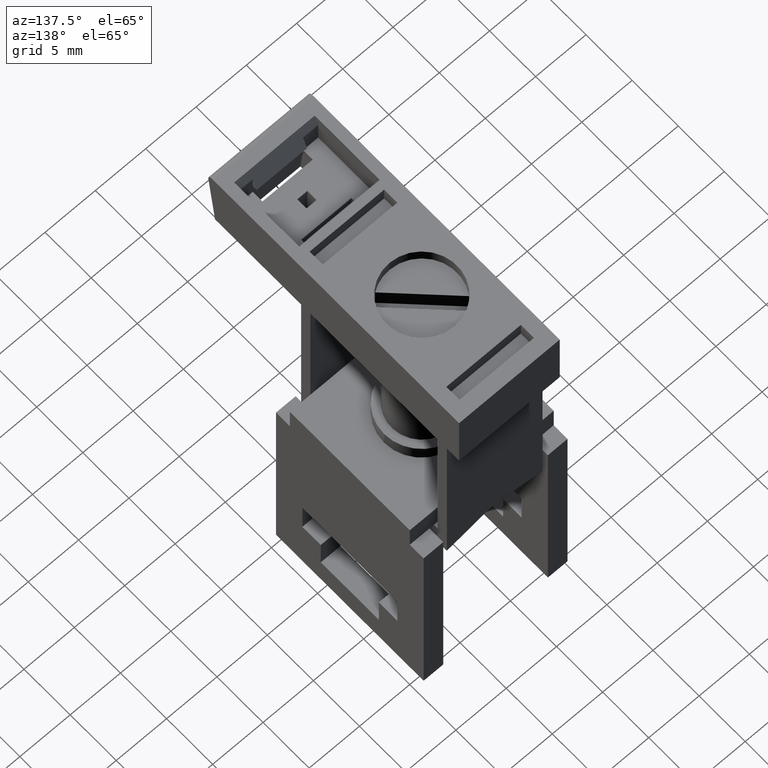
[diagram: clean part render]
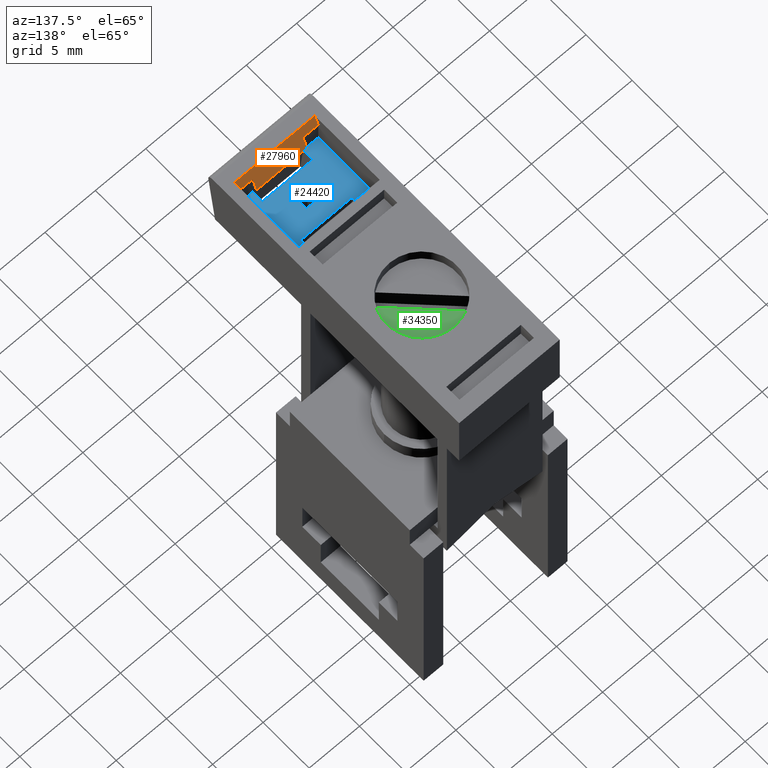
[diagram: same view with three faces highlighted in distinct colors, each labeled with its STEP entity id]
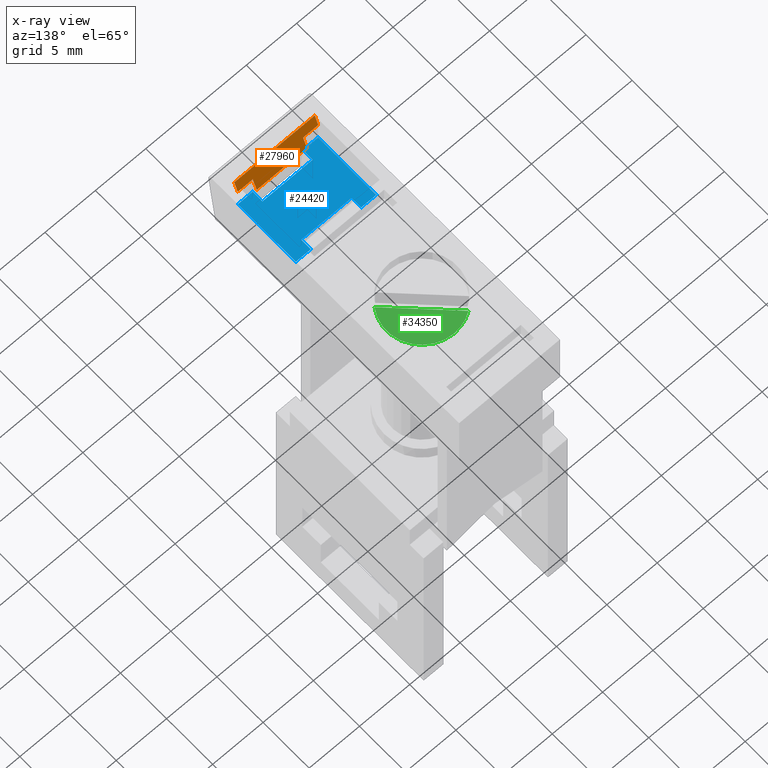
[diagram: x-ray of the same camera — body ghosted, the three highlighted faces saturated]
A machine part, auxiliary view with three faces highlighted in distinct colors.
The next image is the same camera in x-ray (body ghosted, the three faces saturated) — at least one of them is partly hidden behind the body in this view.
Their STEP definitions:

[orange] entity #27960 — the highlighted planar face has unit normal (-0, -0.9397, -0.342).
#22340=CARTESIAN_POINT('',(-24.2056108469937,17.6676779032682,15.6));
#22350=VERTEX_POINT('',#22340);
#22400=CARTESIAN_POINT('',(-24.2056108469937,-24.6874456012687,
0.183995775679829));
#22410=DIRECTION('',(-3.73538322395659E-32,-0.939692620785909,
-0.342020143325667));
#22420=VECTOR('',#22410,1.);
#22430=LINE('',#22400,#22420);
#22440=CARTESIAN_POINT('',(-24.2056108469937,16.5,15.175));
#22450=VERTEX_POINT('',#22440);
#22460=EDGE_CURVE('',#22350,#22450,#22430,.T.);
#26520=CARTESIAN_POINT('',(-30.7056108469937,17.6676779032682,15.6));
#26530=VERTEX_POINT('',#26520);
#26630=CARTESIAN_POINT('',(-22.7056108469937,17.6676779032682,15.6));
#26640=VERTEX_POINT('',#26630);
#26670=CARTESIAN_POINT('',(-26.7056108469937,17.6676779032682,15.6));
#26680=DIRECTION('',(-1.,4.93038065763132E-32,2.62457961965826E-32));
#26690=VECTOR('',#26680,1.);
#26700=LINE('',#26670,#26690);
#26710=EDGE_CURVE('',#26640,#22350,#26700,.T.);
#26860=CARTESIAN_POINT('',(-29.2056108469937,17.6676779032682,15.6));
#26870=VERTEX_POINT('',#26860);
#26900=CARTESIAN_POINT('',(-26.7056108469937,17.6676779032682,15.6));
#26910=DIRECTION('',(-1.,4.93038065763132E-32,2.62457961965826E-32));
#26920=VECTOR('',#26910,1.);
#26930=LINE('',#26900,#26920);
#26940=EDGE_CURVE('',#26870,#26530,#26930,.T.);
#27060=CARTESIAN_POINT('',(-29.2056108469937,-24.6874456012687,
0.183995775679829));
#27070=DIRECTION('',(3.73538322395659E-32,0.939692620785909,
0.342020143325667));
#27080=VECTOR('',#27070,1.);
#27090=LINE('',#27060,#27080);
#27100=CARTESIAN_POINT('',(-29.2056108469937,16.5,15.175));
#27110=VERTEX_POINT('',#27100);
#27120=EDGE_CURVE('',#27110,#26870,#27090,.T.);
#27370=CARTESIAN_POINT('',(-30.7056108469937,-24.6874456012687,
0.183995775679829));
#27380=DIRECTION('',(3.73538322395659E-32,0.939692620785909,
0.342020143325667));
#27390=VECTOR('',#27380,1.);
#27400=LINE('',#27370,#27390);
#27410=CARTESIAN_POINT('',(-30.7056108469937,18.7,15.9757345153856));
#27420=VERTEX_POINT('',#27410);
#27430=EDGE_CURVE('',#26530,#27420,#27400,.T.);
#27640=CARTESIAN_POINT('',(-26.7056108469937,18.0420201433257,
15.7362494328094));
#27650=DIRECTION('',(7.80008602084795E-33,-0.342020143325667,
0.939692620785909));
#27660=DIRECTION('',(-3.73538322395659E-32,-0.939692620785909,
-0.342020143325667));
#27670=AXIS2_PLACEMENT_3D('',#27640,#27650,#27660);
#27680=PLANE('',#27670);
#27690=CARTESIAN_POINT('',(-26.7056108469937,18.7,15.9757345153856));
#27700=DIRECTION('',(-1.,4.93038065763132E-32,2.62457961965826E-32));
#27710=VECTOR('',#27700,1.);
#27720=LINE('',#27690,#27710);
#27730=CARTESIAN_POINT('',(-22.7056108469937,18.7,15.9757345153856));
#27740=VERTEX_POINT('',#27730);
#27750=EDGE_CURVE('',#27740,#27420,#27720,.T.);
#27760=ORIENTED_EDGE('',*,*,#27750,.F.);
#27770=ORIENTED_EDGE('',*,*,#27430,.T.);
#27780=ORIENTED_EDGE('',*,*,#26940,.T.);
#27790=ORIENTED_EDGE('',*,*,#27120,.T.);
#27800=CARTESIAN_POINT('',(-26.7056108469937,16.5,15.175));
#27810=DIRECTION('',(1.,-4.93038065763132E-32,-2.62457961965826E-32));
#27820=VECTOR('',#27810,1.);
#27830=LINE('',#27800,#27820);
#27840=EDGE_CURVE('',#27110,#22450,#27830,.T.);
#27850=ORIENTED_EDGE('',*,*,#27840,.F.);
#27860=ORIENTED_EDGE('',*,*,#22460,.T.);
#27870=ORIENTED_EDGE('',*,*,#26710,.T.);
#27880=CARTESIAN_POINT('',(-22.7056108469937,-24.6874456012687,
0.183995775679829));
#27890=DIRECTION('',(3.73538322395659E-32,0.939692620785909,
0.342020143325667));
#27900=VECTOR('',#27890,1.);
#27910=LINE('',#27880,#27900);
#27920=EDGE_CURVE('',#26640,#27740,#27910,.T.);
#27930=ORIENTED_EDGE('',*,*,#27920,.F.);
#27940=EDGE_LOOP('',(#27930,#27870,#27860,#27850,#27790,#27780,#27770,
#27760));
#27950=FACE_OUTER_BOUND('',#27940,.T.);
#27960=ADVANCED_FACE('',(#27950),#27680,.F.);

[blue] entity #24420 — the highlighted planar face has unit normal (-0, -0, -1).
#15130=CARTESIAN_POINT('',(-24.2056108469937,15.5,10.3499999999999));
#15140=VERTEX_POINT('',#15130);
#15170=CARTESIAN_POINT('',(7.105427357601E-15,15.5,10.3499999999999));
#15180=DIRECTION('',(1.,-4.93038065763132E-32,-2.62457961965826E-32));
#15190=VECTOR('',#15180,1.);
#15200=LINE('',#15170,#15190);
#15210=CARTESIAN_POINT('',(-29.2056108469937,15.5,10.3499999999999));
#15220=VERTEX_POINT('',#15210);
#15230=EDGE_CURVE('',#15220,#15140,#15200,.T.);
#16460=CARTESIAN_POINT('',(-29.2056108469937,15.5,14.5499999999999));
#16470=VERTEX_POINT('',#16460);
#16500=CARTESIAN_POINT('',(7.105427357601E-15,15.5,14.5499999999999));
#16510=DIRECTION('',(-1.,4.93038065763132E-32,2.62457961965826E-32));
#16520=VECTOR('',#16510,1.);
#16530=LINE('',#16500,#16520);
#16540=CARTESIAN_POINT('',(-24.2056108469937,15.5,14.5499999999999));
#16550=VERTEX_POINT('',#16540);
#16560=EDGE_CURVE('',#16550,#16470,#16530,.T.);
#16930=CARTESIAN_POINT('',(-26.2056108469937,15.5,11.95));
#16940=VERTEX_POINT('',#16930);
#16970=CARTESIAN_POINT('',(-26.2056108469937,15.5,-36.1472590760953));
#16980=DIRECTION('',(2.62457961965826E-32,-1.23259516440783E-32,-1.));
#16990=VECTOR('',#16980,1.);
#17000=LINE('',#16970,#16990);
#17010=CARTESIAN_POINT('',(-26.2056108469937,15.5,12.95));
#17020=VERTEX_POINT('',#17010);
#17030=EDGE_CURVE('',#17020,#16940,#17000,.T.);
#18220=CARTESIAN_POINT('',(-27.2056108469937,15.5,11.95));
#18230=VERTEX_POINT('',#18220);
#18260=CARTESIAN_POINT('',(-26.7056108469937,15.5,11.95));
#18270=DIRECTION('',(-1.,4.93038065763132E-32,2.62457961965826E-32));
#18280=VECTOR('',#18270,1.);
#18290=LINE('',#18260,#18280);
#18300=EDGE_CURVE('',#16940,#18230,#18290,.T.);
#19780=CARTESIAN_POINT('',(-24.2056108469937,15.5,9.29999999999999));
#19790=VERTEX_POINT('',#19780);
#19820=CARTESIAN_POINT('',(-24.2056108469937,15.5,-36.1472590760953));
#19830=DIRECTION('',(2.62457961965826E-32,-1.23259516440783E-32,-1.));
#19840=VECTOR('',#19830,1.);
#19850=LINE('',#19820,#19840);
#19860=EDGE_CURVE('',#15140,#19790,#19850,.T.);
#21730=CARTESIAN_POINT('',(-29.2056108469937,15.5,15.5999999999999));
#21740=VERTEX_POINT('',#21730);
#21770=CARTESIAN_POINT('',(-29.2056108469937,15.5,-36.1472590760953));
#21780=DIRECTION('',(2.62457961965826E-32,-1.23259516440783E-32,-1.));
#21790=VECTOR('',#21780,1.);
#21800=LINE('',#21770,#21790);
#21810=EDGE_CURVE('',#21740,#16470,#21800,.T.);
#22010=CARTESIAN_POINT('',(-24.2056108469937,15.5,-36.1472590760953));
#22020=DIRECTION('',(2.62457961965826E-32,-1.23259516440783E-32,-1.));
#22030=VECTOR('',#22020,1.);
#22040=LINE('',#22010,#22030);
#22050=CARTESIAN_POINT('',(-24.2056108469937,15.5,15.5999999999999));
#22060=VERTEX_POINT('',#22050);
#22070=EDGE_CURVE('',#22060,#16550,#22040,.T.);
#22730=CARTESIAN_POINT('',(-29.2056108469937,15.5,9.29999999999995));
#22740=VERTEX_POINT('',#22730);
#23390=CARTESIAN_POINT('',(-29.2056108469937,15.5,-36.1472590760953));
#23400=DIRECTION('',(2.62457961965826E-32,-1.23259516440783E-32,-1.));
#23410=VECTOR('',#23400,1.);
#23420=LINE('',#23390,#23410);
#23430=EDGE_CURVE('',#15220,#22740,#23420,.T.);
#23750=CARTESIAN_POINT('',(-26.2056108469937,15.5,12.95));
#23760=DIRECTION('',(-4.93038065763132E-32,-1.,1.23259516440783E-32));
#23770=DIRECTION('',(2.62457961965826E-32,-1.23259516440783E-32,-1.));
#23780=AXIS2_PLACEMENT_3D('',#23750,#23760,#23770);
#23790=PLANE('',#23780);
#23800=ORIENTED_EDGE('',*,*,#17030,.F.);
#23810=ORIENTED_EDGE('',*,*,#18300,.F.);
#23820=CARTESIAN_POINT('',(-27.2056108469937,15.5,-36.1472590760953));
#23830=DIRECTION('',(-2.62457961965826E-32,1.23259516440783E-32,1.));
#23840=VECTOR('',#23830,1.);
#23850=LINE('',#23820,#23840);
#23860=CARTESIAN_POINT('',(-27.2056108469937,15.5,12.95));
#23870=VERTEX_POINT('',#23860);
#23880=EDGE_CURVE('',#18230,#23870,#23850,.T.);
#23890=ORIENTED_EDGE('',*,*,#23880,.F.);
#23900=CARTESIAN_POINT('',(-26.7056108469937,15.5,12.95));
#23910=DIRECTION('',(1.,-4.93038065763132E-32,-2.62457961965826E-32));
#23920=VECTOR('',#23910,1.);
#23930=LINE('',#23900,#23920);
#23940=EDGE_CURVE('',#23870,#17020,#23930,.T.);
#23950=ORIENTED_EDGE('',*,*,#23940,.F.);
#23960=EDGE_LOOP('',(#23950,#23890,#23810,#23800));
#23970=FACE_BOUND('',#23960,.T.);
#23980=CARTESIAN_POINT('',(-26.7056108469937,15.5,15.6));
#23990=DIRECTION('',(-1.,4.93038065763132E-32,2.62457961965826E-32));
#24000=VECTOR('',#23990,1.);
#24010=LINE('',#23980,#24000);
#24020=CARTESIAN_POINT('',(-22.7056108469937,15.5,15.6));
#24030=VERTEX_POINT('',#24020);
#24040=EDGE_CURVE('',#24030,#22060,#24010,.T.);
#24050=ORIENTED_EDGE('',*,*,#24040,.F.);
#24060=ORIENTED_EDGE('',*,*,#22070,.F.);
#24070=ORIENTED_EDGE('',*,*,#16560,.F.);
#24080=ORIENTED_EDGE('',*,*,#21810,.T.);
#24090=CARTESIAN_POINT('',(-30.7056108469937,15.5,15.6));
#24100=VERTEX_POINT('',#24090);
#24110=EDGE_CURVE('',#21740,#24100,#24010,.T.);
#24120=ORIENTED_EDGE('',*,*,#24110,.F.);
#24130=CARTESIAN_POINT('',(-30.7056108469937,15.5,-36.1472590760953));
#24140=DIRECTION('',(2.62457961965826E-32,-1.23259516440783E-32,-1.));
#24150=VECTOR('',#24140,1.);
#24160=LINE('',#24130,#24150);
#24170=CARTESIAN_POINT('',(-30.7056108469937,15.5,9.29999999999999));
#24180=VERTEX_POINT('',#24170);
#24190=EDGE_CURVE('',#24100,#24180,#24160,.T.);
#24200=ORIENTED_EDGE('',*,*,#24190,.F.);
#24210=CARTESIAN_POINT('',(-26.7056108469937,15.5,9.29999999999999));
#24220=DIRECTION('',(1.,-4.93038065763132E-32,-2.62457961965826E-32));
#24230=VECTOR('',#24220,1.);
#24240=LINE('',#24210,#24230);
#24250=EDGE_CURVE('',#24180,#22740,#24240,.T.);
#24260=ORIENTED_EDGE('',*,*,#24250,.F.);
#24270=ORIENTED_EDGE('',*,*,#23430,.T.);
#24280=ORIENTED_EDGE('',*,*,#15230,.F.);
#24290=ORIENTED_EDGE('',*,*,#19860,.F.);
#24300=CARTESIAN_POINT('',(-22.7056108469937,15.5,9.29999999999999));
#24310=VERTEX_POINT('',#24300);
#24320=EDGE_CURVE('',#19790,#24310,#24240,.T.);
#24330=ORIENTED_EDGE('',*,*,#24320,.F.);
#24340=CARTESIAN_POINT('',(-22.7056108469937,15.5,-36.1472590760953));
#24350=DIRECTION('',(-2.62457961965826E-32,1.23259516440783E-32,1.));
#24360=VECTOR('',#24350,1.);
#24370=LINE('',#24340,#24360);
#24380=EDGE_CURVE('',#24310,#24030,#24370,.T.);
#24390=ORIENTED_EDGE('',*,*,#24380,.F.);
#24400=EDGE_LOOP('',(#24390,#24330,#24290,#24280,#24270,#24260,#24200,
#24120,#24080,#24070,#24060,#24050));
#24410=FACE_OUTER_BOUND('',#24400,.T.);
#24420=ADVANCED_FACE('',(#23970,#24410),#23790,.F.);

[green] entity #34350 — the highlighted planar face has unit normal (0, 0, 1).
#32690=CARTESIAN_POINT('',(-23.8431097102345,17.5,2.01397299933539));
#32700=VERTEX_POINT('',#32690);
#32730=CARTESIAN_POINT('',(-26.7056108469937,17.5,-3.5527136788005E-15))
;
#32740=DIRECTION('',(4.93038065763132E-32,1.,-1.23259516440783E-32));
#32750=DIRECTION('',(-2.62457961965826E-32,1.23259516440783E-32,1.));
#32760=AXIS2_PLACEMENT_3D('',#32730,#32740,#32750);
#32770=CIRCLE('',#32760,3.5);
#32780=CARTESIAN_POINT('',(-26.7056108469937,17.5,-3.5));
#32790=VERTEX_POINT('',#32780);
#32800=EDGE_CURVE('',#32700,#32790,#32770,.T.);
#33090=CARTESIAN_POINT('',(-28.0345452852767,17.5,1.32893443828297));
#33100=DIRECTION('',(4.93038065763132E-32,1.,-1.23259516440783E-32));
#33110=DIRECTION('',(-0.707106781186547,4.35788199605262E-32,
0.707106781186548));
#33120=AXIS2_PLACEMENT_3D('',#33090,#33100,#33110);
#33130=PLANE('',#33120);
#34070=CARTESIAN_POINT('',(-28.7195838463291,17.5,-2.86250113675926));
#34080=VERTEX_POINT('',#34070);
#34110=CARTESIAN_POINT('',(-26.7056108469937,17.5,-0.848528137423859));
#34120=DIRECTION('',(0.707106781186548,-2.61472919763157E-32,
0.707106781186547));
#34130=VECTOR('',#34120,1.);
#34140=LINE('',#34110,#34130);
#34150=EDGE_CURVE('',#34080,#32700,#34140,.T.);
#34290=EDGE_CURVE('',#32790,#34080,#32770,.T.);
#34300=ORIENTED_EDGE('',*,*,#34290,.T.);
#34310=ORIENTED_EDGE('',*,*,#32800,.T.);
#34320=ORIENTED_EDGE('',*,*,#34150,.T.);
#34330=EDGE_LOOP('',(#34320,#34310,#34300));
#34340=FACE_OUTER_BOUND('',#34330,.T.);
#34350=ADVANCED_FACE('',(#34340),#33130,.T.);